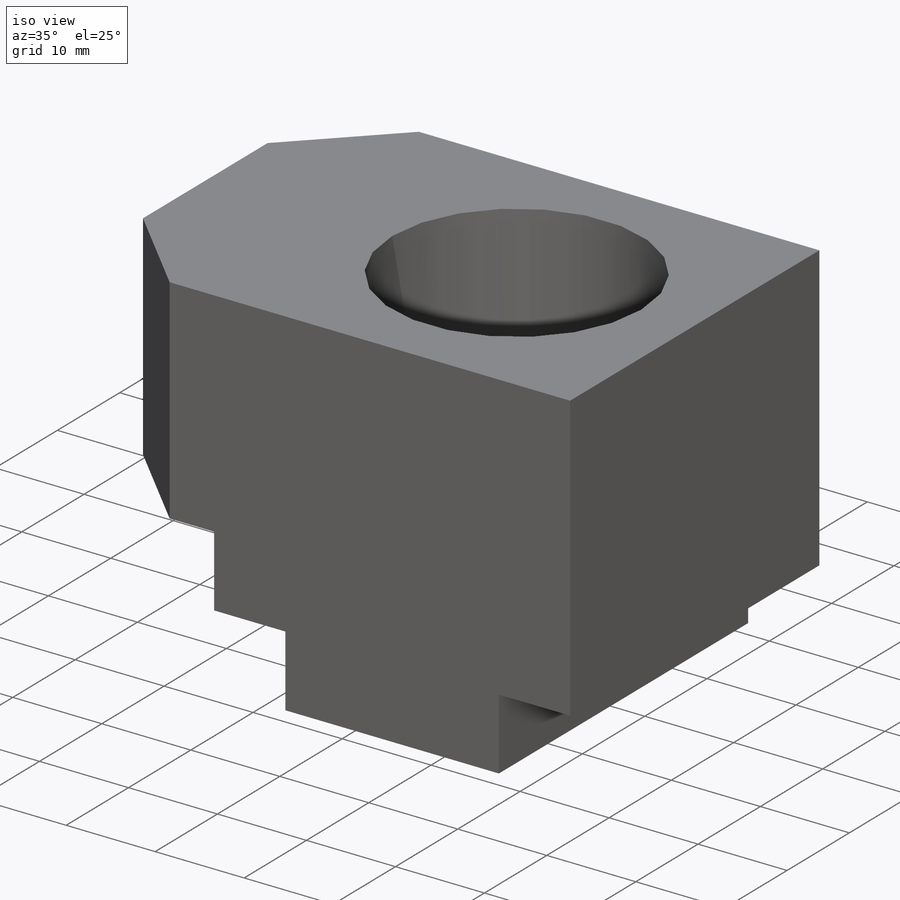
[diagram: iso view]
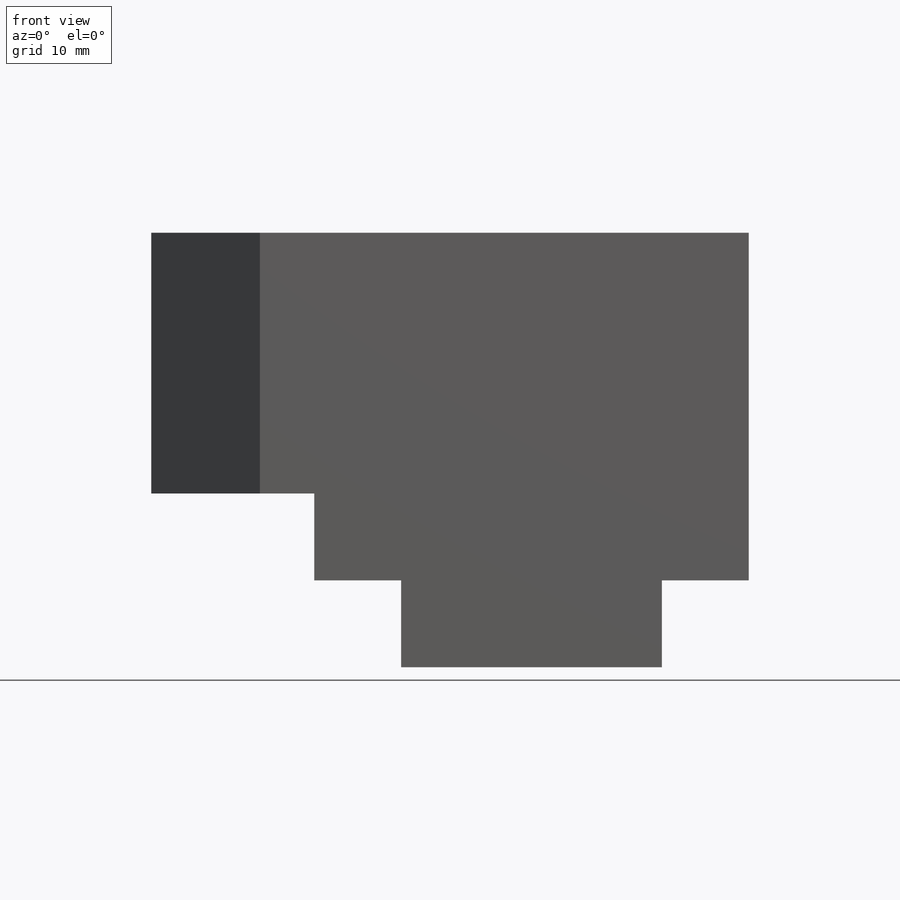
[diagram: front view]
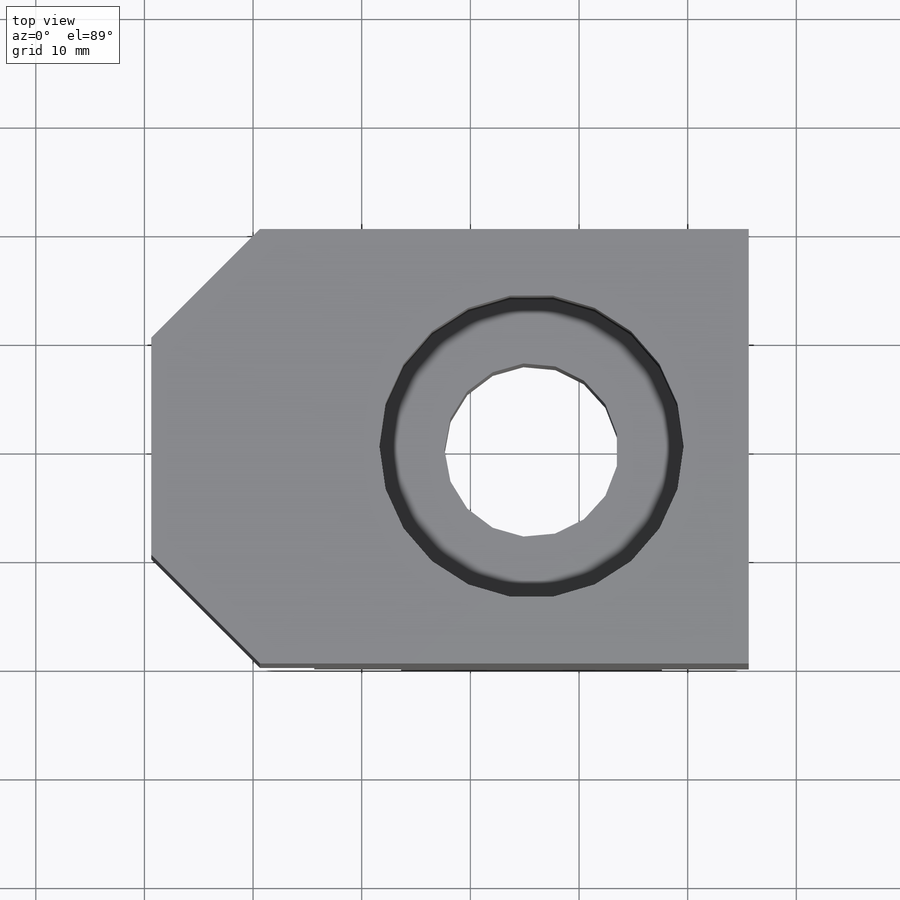
[diagram: top view]
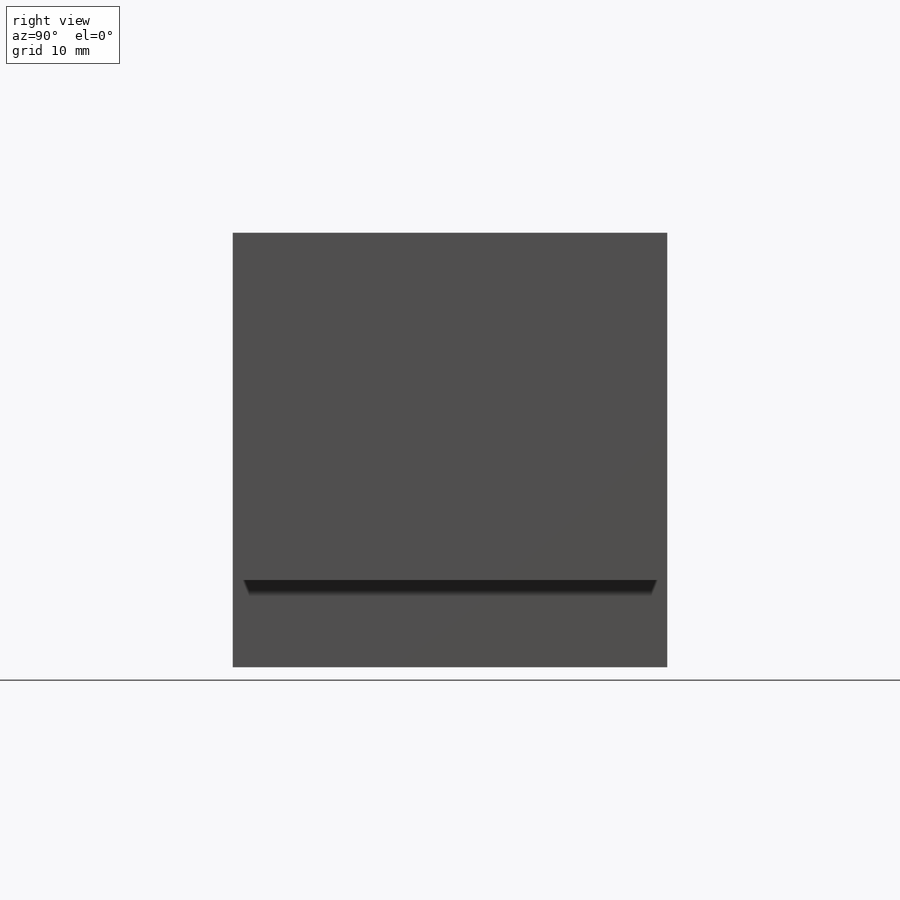
[diagram: right view]
SOLIDWORKS PART (.sldprt)
format: sldprt  version: not decoded by parser v0  size: 163,328 bytes
history: native  units: mm
features: sketch x7, cut_extrude x6, plane x3, material x1, extrude x1 (+10 scaffold rows collapsed)
feature tree (28):
  scaffold x10  (default folders/planes/origin — collapsed)
  material  "Matériau <non spécifié>"
  plane  "Plan de face"
  plane  "Plan de dessus"
  plane  "Plan de droite"
  sketch  "Esquisse1"  dims[D1=55.0mm D2=40.0mm]
  extrude  "Extrusion1"  Depth=40mm
  sketch  "Esquisse2"  dims[D1=8.0mm D2=8.0mm]
  cut_extrude  "Enlèv. mat.-Extru.1"  [1 undecoded]
  sketch  "Esquisse3"  dims[D1=23.0mm D2=8.0mm D3=8.0mm D4=8.0mm]
  cut_extrude  "Enlèv. mat.-Extru.2"  Depth=40mm
  sketch  "Esquisse4"  dims[D1=10.0mm D2=10.0mm]
  cut_extrude  "Enlèv. mat.-Extru.3"  Depth=40mm
  sketch  "Esquisse5"  dims[D1=10.0mm D2=10.0mm]
  cut_extrude  "Enlèv. mat.-Extru.4"  Depth=40mm
  sketch  "Esquisse6"  dims[D1=16.0mm D2=20.0mm D3=20.0mm]
  cut_extrude  "Enlèv. mat.-Extru.5"  [1 undecoded]
  sketch  "Esquisse7"  dims[D1=28.0mm D2=20.0mm D3=20.0mm]
  cut_extrude  "Enlèv. mat.-Extru.6"  Depth=20mm
decode coverage: 12 of 14 modeling features carry decoded parameters
note: 2 parameter values undecoded
note: suppression state not decoded; provenance and decode notes live in map.json
